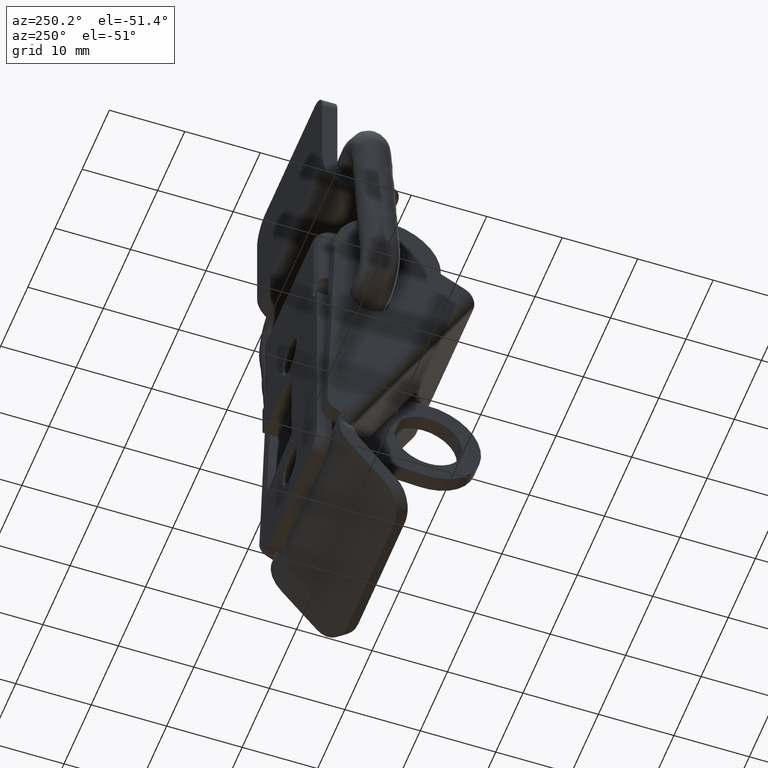
[diagram: clean part render]
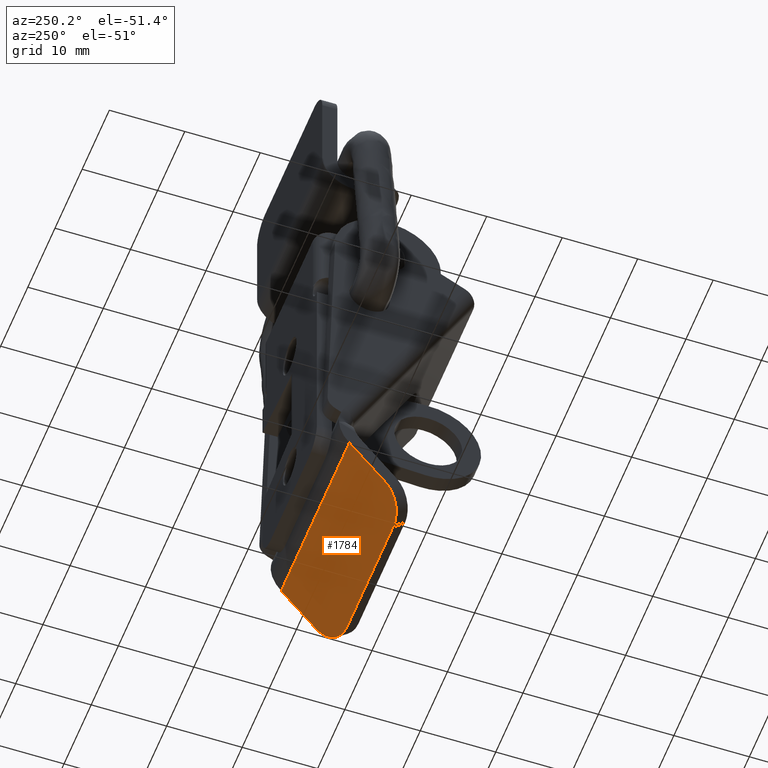
[diagram: same view with one face highlighted and labeled with its STEP entity id]
A machine part, auxiliary view. The second image highlights one B-rep face of the part: STEP entity #1784.
In plain terms, the highlighted face is a freeform B-spline surface patch.
Its self-contained STEP definition (entity closure, byte-faithful):
#1553=CARTESIAN_POINT('',(-3.623524277476050,-12.550000000000001,-61.932650288601302));
#1554=VERTEX_POINT('',#1553);
#1555=CARTESIAN_POINT('',(-6.162402000000190,-8.550000000000001,-65.025054999999995));
#1556=VERTEX_POINT('',#1555);
#1557=CARTESIAN_POINT('',(-3.623524277476050,-12.550000000000001,-61.932650288601302));
#1558=CARTESIAN_POINT('',(-6.162401629321611,-12.550000000000001,-65.025054548506020));
#1559=CARTESIAN_POINT('',(-6.162402000000190,-8.550000000000001,-65.025054999999995));
#1567=(BOUNDED_CURVE()B_SPLINE_CURVE(2,(#1557,#1558,#1559),.UNSPECIFIED.,.F.,.U.)CURVE()GEOMETRIC_REPRESENTATION_ITEM()QUASI_UNIFORM_CURVE()RATIONAL_B_SPLINE_CURVE((1.0,0.707106832805682,1.0))REPRESENTATION_ITEM(''));
#1568=EDGE_CURVE('',#1554,#1556,#1567,.T.);
#1616=CARTESIAN_POINT('',(-6.162402000000190,8.550000000000001,-65.025054999999995));
#1617=VERTEX_POINT('',#1616);
#1618=CARTESIAN_POINT('',(-3.623524277476041,12.550000000000001,-61.932650288601302));
#1619=VERTEX_POINT('',#1618);
#1620=CARTESIAN_POINT('',(-6.162402000000180,8.550000000000001,-65.025055000000052));
#1621=CARTESIAN_POINT('',(-6.162402000000180,12.549999999999999,-65.025055000000052));
#1622=CARTESIAN_POINT('',(-3.623524277476045,12.550000000000001,-61.932650288601302));
#1630=(BOUNDED_CURVE()B_SPLINE_CURVE(2,(#1620,#1621,#1622),.UNSPECIFIED.,.F.,.U.)CURVE()GEOMETRIC_REPRESENTATION_ITEM()QUASI_UNIFORM_CURVE()RATIONAL_B_SPLINE_CURVE((1.0,0.707106781186548,1.0))REPRESENTATION_ITEM(''));
#1631=EDGE_CURVE('',#1617,#1619,#1630,.T.);
#1684=CARTESIAN_POINT('',(1.110398633663634,12.550000000000001,-56.166635886279913));
#1685=VERTEX_POINT('',#1684);
#1699=CARTESIAN_POINT('',(1.110398633663634,12.550000000000001,-56.166635886279913));
#1700=CARTESIAN_POINT('',(-3.623524277476041,12.550000000000001,-61.932650288601302));
#1701=QUASI_UNIFORM_CURVE('',1,(#1699,#1700),.UNSPECIFIED.,.F.,.U.);
#1702=EDGE_CURVE('',#1685,#1619,#1701,.T.);
#1718=CARTESIAN_POINT('',(1.110398633663634,-12.550000000000001,-56.166635886279913));
#1719=VERTEX_POINT('',#1718);
#1755=CARTESIAN_POINT('',(1.110398633663634,-12.550000000000001,-56.166635886279913));
#1756=CARTESIAN_POINT('',(-3.623524277476050,-12.550000000000001,-61.932650288601302));
#1757=QUASI_UNIFORM_CURVE('',1,(#1755,#1756),.UNSPECIFIED.,.F.,.U.);
#1758=EDGE_CURVE('',#1719,#1554,#1757,.T.);
#1763=CARTESIAN_POINT('',(1.473674260228758,-13.803745186972179,-55.724158783440458));
#1764=CARTESIAN_POINT('',(-6.525678536899902,-13.803745186972179,-65.467533211645645));
#1765=CARTESIAN_POINT('',(1.473674260228758,13.803745635795149,-55.724158783440458));
#1766=CARTESIAN_POINT('',(-6.525678536899902,13.803745635795149,-65.467533211645645));
#1767=B_SPLINE_SURFACE_WITH_KNOTS('',1,1,((#1763,#1765),(#1764,#1766)),.UNSPECIFIED.,.F.,.F.,.U.,(2,2),(2,2),(0.0,12.606466214650830),(0.0,27.607490822767328),.UNSPECIFIED.);
#1768=CARTESIAN_POINT('',(-6.162402000000190,-8.550000000000001,-65.025054999999995));
#1769=CARTESIAN_POINT('',(-6.162402000000190,8.550000000000001,-65.025054999999995));
#1770=QUASI_UNIFORM_CURVE('',1,(#1768,#1769),.UNSPECIFIED.,.F.,.U.);
#1771=EDGE_CURVE('',#1556,#1617,#1770,.T.);
#1772=ORIENTED_EDGE('',*,*,#1771,.T.);
#1773=ORIENTED_EDGE('',*,*,#1631,.T.);
#1774=ORIENTED_EDGE('',*,*,#1702,.F.);
#1775=CARTESIAN_POINT('',(1.110398633663634,-12.550000000000001,-56.166635886279913));
#1776=CARTESIAN_POINT('',(1.110398633663634,12.550000000000001,-56.166635886279913));
#1777=QUASI_UNIFORM_CURVE('',1,(#1775,#1776),.UNSPECIFIED.,.F.,.U.);
#1778=EDGE_CURVE('',#1719,#1685,#1777,.T.);
#1779=ORIENTED_EDGE('',*,*,#1778,.F.);
#1780=ORIENTED_EDGE('',*,*,#1758,.T.);
#1781=ORIENTED_EDGE('',*,*,#1568,.T.);
#1782=EDGE_LOOP('',(#1772,#1773,#1774,#1779,#1780,#1781));
#1783=FACE_OUTER_BOUND('',#1782,.T.);
#1784=ADVANCED_FACE('',(#1783),#1767,.T.);